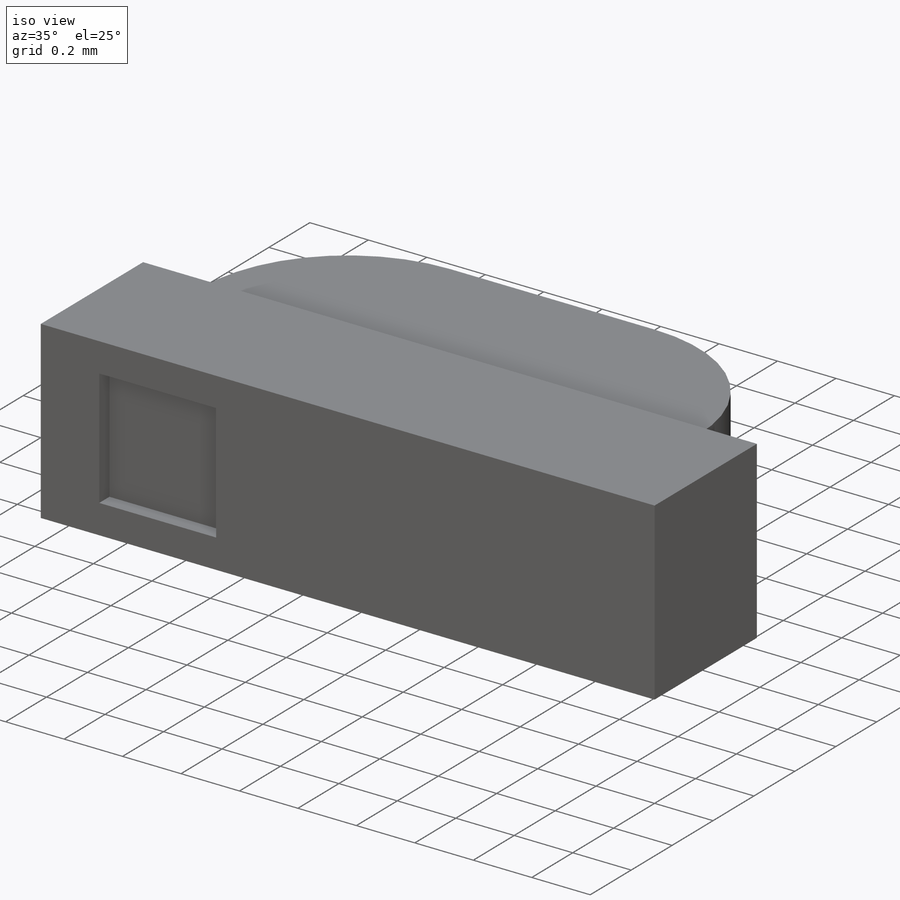
[diagram: iso view]
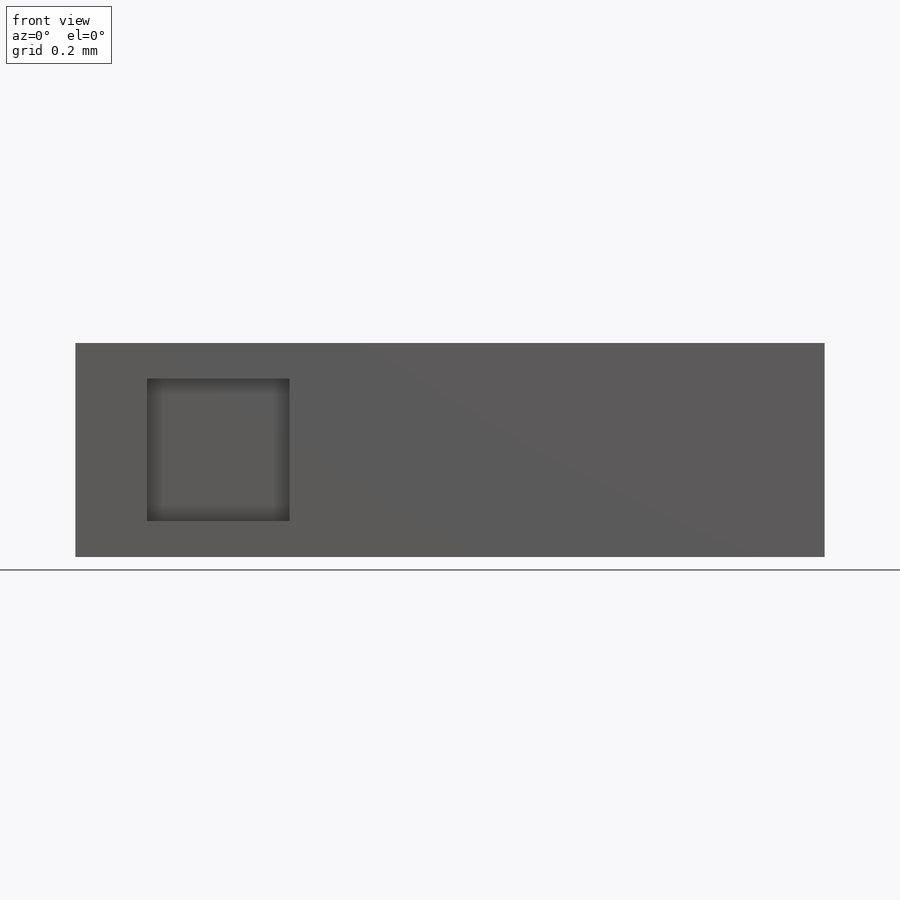
[diagram: front view]
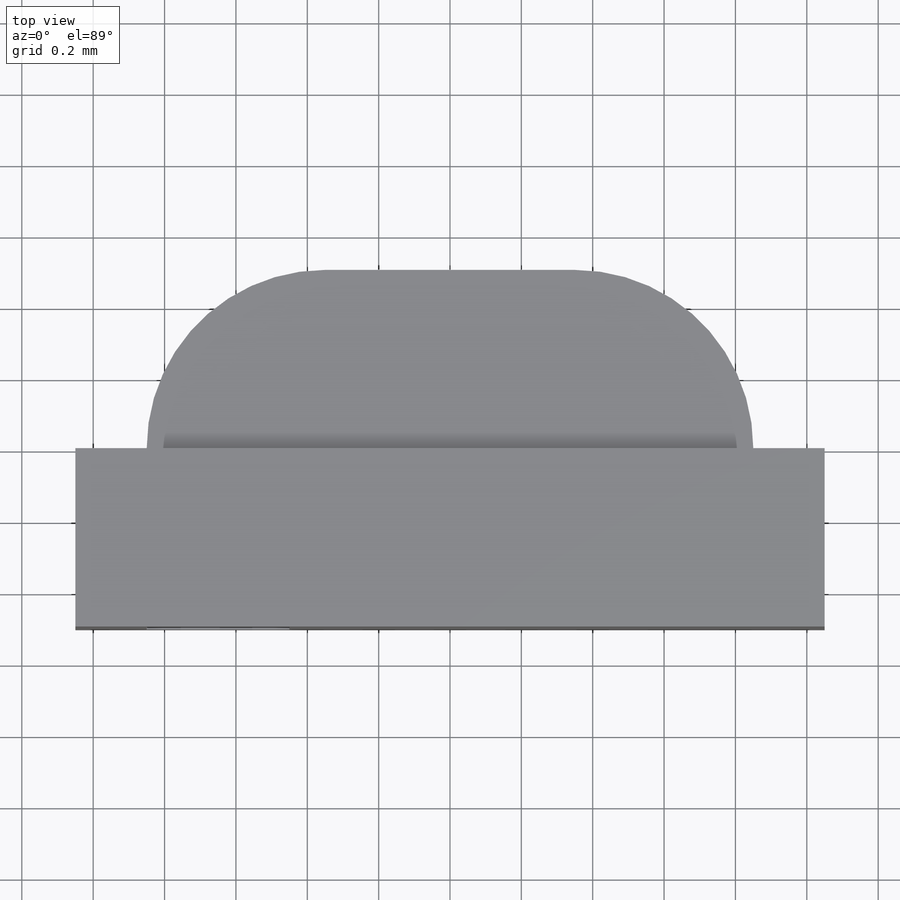
[diagram: top view]
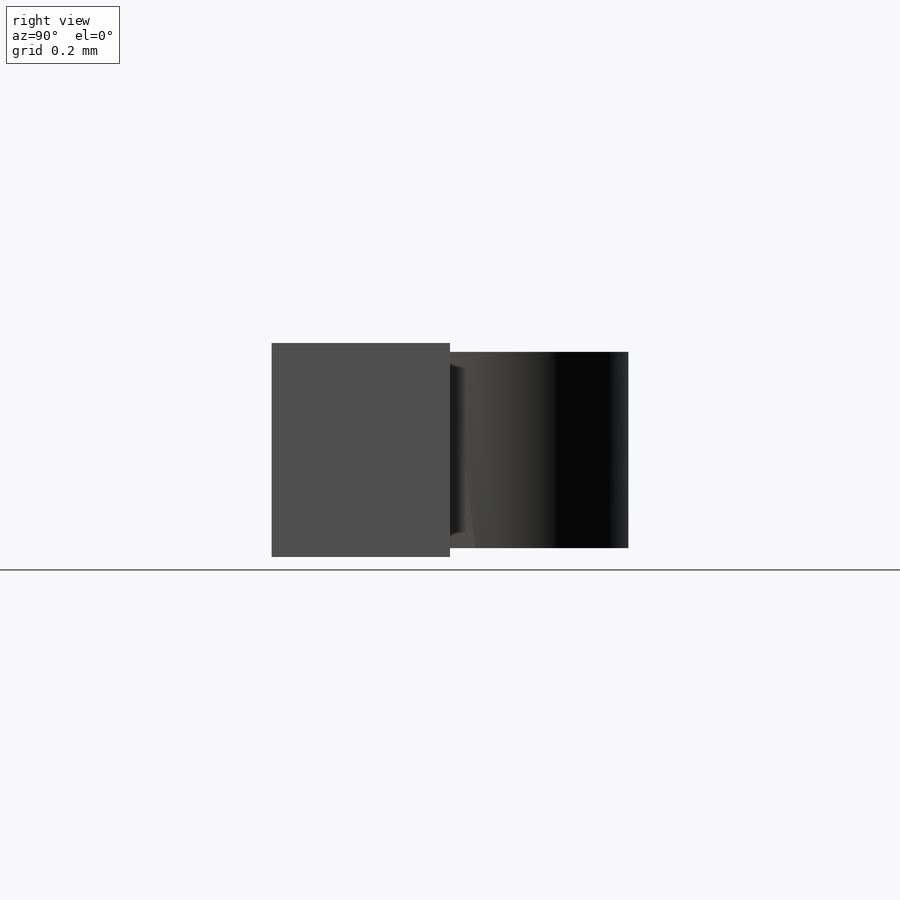
[diagram: right view]
SOLIDWORKS PART (.sldprt)
format: sldprt  version: not decoded by parser v0  size: 351,232 bytes
history: native  units: mm
features: sketch x3, cut_extrude x2, material x1, extrude x1 (+16 scaffold rows collapsed)
feature tree (23):
  scaffold x16  (default folders/planes/origin — collapsed)
  material  "Material <not specified>"
  sketch  "Sketch1"  dims[c1.D4=0.4mm c1.D1=2.1mm c1.D2=0.5mm c1.D3=0.5mm c2.D4=1.7mm c2.D5=0.85mm c2.D6=0.85mm c2.D2=0.5mm c3.D6=1.05mm]
  extrude  "Boss-Extrude1"  Depth=0.6mm
  sketch  "Sketch2"  dims[D1=0.025mm D2=0.025mm]
  cut_extrude  "Cut-Extrude1"  Depth=0.5mm
  sketch  "Sketch3"  dims[D1=0.2mm D2=0.1mm D3=0.4mm D4=0.1mm D5=0.4mm]
  cut_extrude  "Cut-Extrude2"  Depth=0.05mm
decode coverage: 6 of 6 modeling features carry decoded parameters
note: suppression state not decoded; provenance and decode notes live in map.json
